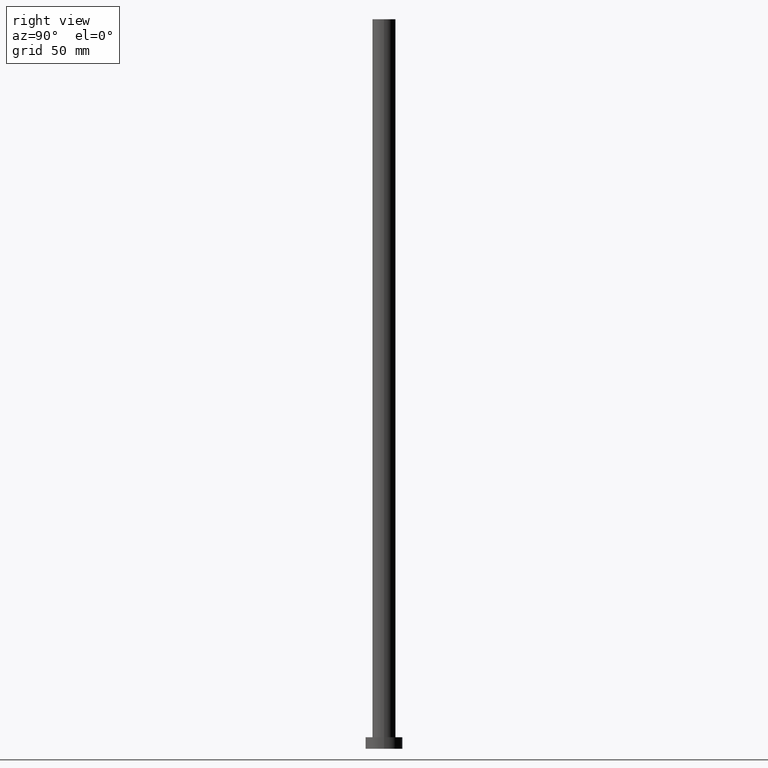
[diagram: clean part render]
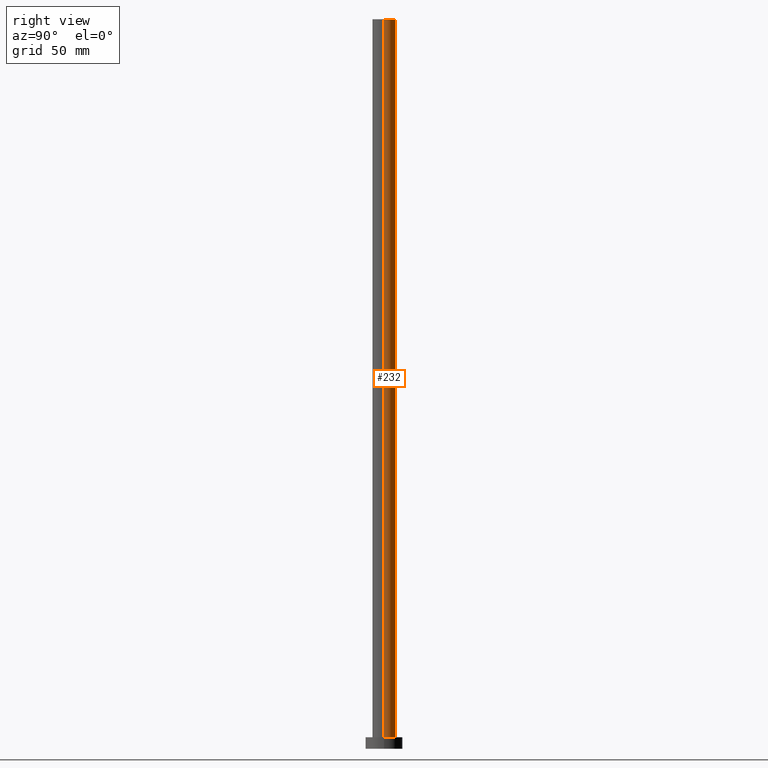
[diagram: same view with one face highlighted and labeled with its STEP entity id]
A machine part, right view. The second image highlights one B-rep face of the part: STEP entity #232.
In plain terms, the highlighted cylindrical surface (edge-blend (fillet) strip) has radius 5 mm, axis along (-0, -0, -1).
Its self-contained STEP definition (entity closure, byte-faithful):
#3 = DIRECTION ( 'NONE',  ( 0.000000000000000000, 0.000000000000000000, 1.000000000000000000 ) ) ;
#5 = CARTESIAN_POINT ( 'NONE',  ( 0.000000000000000000, 0.000000000000000000, 315.0000000000000000 ) ) ;
#15 = AXIS2_PLACEMENT_3D ( 'NONE', #228, #59, #21 ) ;
#21 = DIRECTION ( 'NONE',  ( -1.000000000000000000, 0.000000000000000000, 0.000000000000000000 ) ) ;
#22 = CARTESIAN_POINT ( 'NONE',  ( 5.000000000000000000, 6.123233995736766282E-16, 315.0000000000000000 ) ) ;
#35 = VECTOR ( 'NONE', #75, 1000.000000000000000 ) ;
#39 = VECTOR ( 'NONE', #61, 1000.000000000000000 ) ;
#40 = VERTEX_POINT ( 'NONE', #149 ) ;
#54 = LINE ( 'NONE', #147, #35 ) ;
#57 = FACE_OUTER_BOUND ( 'NONE', #159, .T. ) ;
#59 = DIRECTION ( 'NONE',  ( -0.000000000000000000, -0.000000000000000000, -1.000000000000000000 ) ) ;
#61 = DIRECTION ( 'NONE',  ( -0.000000000000000000, -0.000000000000000000, -1.000000000000000000 ) ) ;
#64 = EDGE_CURVE ( 'NONE', #152, #183, #98, .T. ) ;
#69 = ORIENTED_EDGE ( 'NONE', *, *, #64, .F. ) ;
#75 = DIRECTION ( 'NONE',  ( -0.000000000000000000, -0.000000000000000000, -1.000000000000000000 ) ) ;
#82 = DIRECTION ( 'NONE',  ( 0.000000000000000000, 0.000000000000000000, 1.000000000000000000 ) ) ;
#84 = LINE ( 'NONE', #184, #39 ) ;
#86 = AXIS2_PLACEMENT_3D ( 'NONE', #93, #3, #179 ) ;
#93 = CARTESIAN_POINT ( 'NONE',  ( 0.000000000000000000, 0.000000000000000000, 5.000000000000000000 ) ) ;
#98 = CIRCLE ( 'NONE', #240, 5.000000000000000000 ) ;
#111 = VERTEX_POINT ( 'NONE', #225 ) ;
#114 = ORIENTED_EDGE ( 'NONE', *, *, #248, .F. ) ;
#131 = ORIENTED_EDGE ( 'NONE', *, *, #157, .T. ) ;
#147 = CARTESIAN_POINT ( 'NONE',  ( 5.000000000000000000, 6.123233995736766282E-16, 315.0000000000000000 ) ) ;
#149 = CARTESIAN_POINT ( 'NONE',  ( 5.000000000000000000, 6.123233995736766282E-16, 5.000000000000000000 ) ) ;
#150 = CIRCLE ( 'NONE', #86, 5.000000000000000000 ) ;
#152 = VERTEX_POINT ( 'NONE', #22 ) ;
#154 = DIRECTION ( 'NONE',  ( 1.000000000000000000, 0.000000000000000000, 0.000000000000000000 ) ) ;
#156 = ORIENTED_EDGE ( 'NONE', *, *, #162, .T. ) ;
#157 = EDGE_CURVE ( 'NONE', #152, #40, #54, .T. ) ;
#159 = EDGE_LOOP ( 'NONE', ( #69, #131, #156, #114 ) ) ;
#162 = EDGE_CURVE ( 'NONE', #40, #111, #150, .T. ) ;
#179 = DIRECTION ( 'NONE',  ( 1.000000000000000000, 0.000000000000000000, 0.000000000000000000 ) ) ;
#183 = VERTEX_POINT ( 'NONE', #199 ) ;
#184 = CARTESIAN_POINT ( 'NONE',  ( -5.000000000000000000, 0.000000000000000000, 315.0000000000000000 ) ) ;
#199 = CARTESIAN_POINT ( 'NONE',  ( -5.000000000000000000, 0.000000000000000000, 315.0000000000000000 ) ) ;
#203 = CYLINDRICAL_SURFACE ( 'NONE', #15, 5.000000000000000000 ) ;
#225 = CARTESIAN_POINT ( 'NONE',  ( -5.000000000000000000, 0.000000000000000000, 5.000000000000000000 ) ) ;
#228 = CARTESIAN_POINT ( 'NONE',  ( 0.000000000000000000, 0.000000000000000000, 315.0000000000000000 ) ) ;
#232 = ADVANCED_FACE ( 'NONE', ( #57 ), #203, .T. ) ;
#240 = AXIS2_PLACEMENT_3D ( 'NONE', #5, #82, #154 ) ;
#248 = EDGE_CURVE ( 'NONE', #183, #111, #84, .T. ) ;